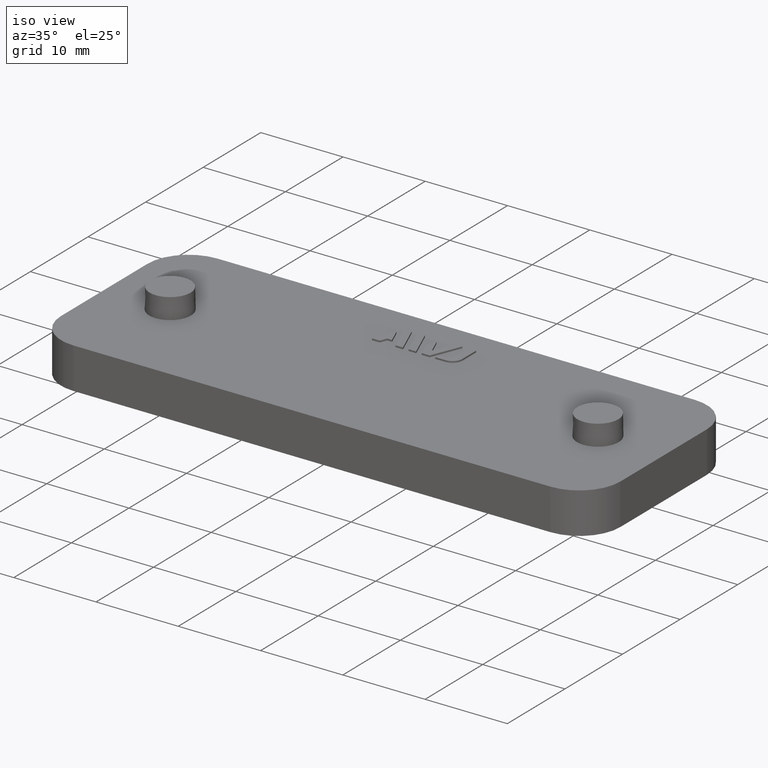
[diagram: clean part render]
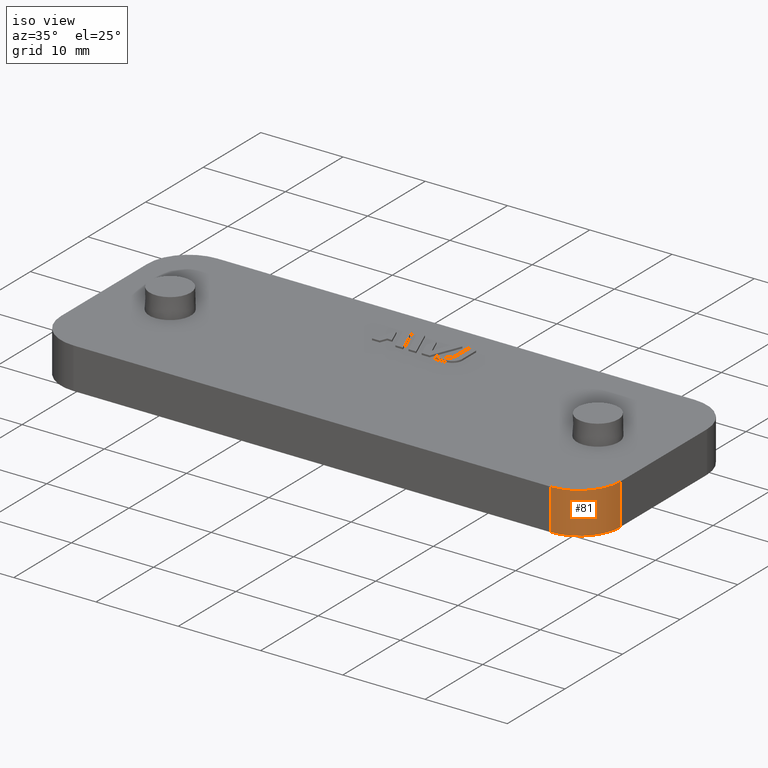
[diagram: same view with one face highlighted and labeled with its STEP entity id]
A machine part, iso view. The second image highlights one B-rep face of the part: STEP entity #81.
In plain terms, the highlighted cylindrical surface (partial cylindrical patch) has radius 5 mm, axis along (-0, -0, -1).
Its self-contained STEP definition (entity closure, byte-faithful):
#81 = ADVANCED_FACE( '', ( #463 ), #464, .T. );
#463 = FACE_OUTER_BOUND( '', #1257, .T. );
#464 = CYLINDRICAL_SURFACE( '', #1258, 5.00000000000000 );
#1257 = EDGE_LOOP( '', ( #2108, #2109, #2110, #2111 ) );
#1258 = AXIS2_PLACEMENT_3D( '', #2112, #2113, #2114 );
#2108 = ORIENTED_EDGE( '', *, *, #5043, .F. );
#2109 = ORIENTED_EDGE( '', *, *, #5042, .T. );
#2110 = ORIENTED_EDGE( '', *, *, #5003, .T. );
#2111 = ORIENTED_EDGE( '', *, *, #5031, .F. );
#2112 = CARTESIAN_POINT( '', ( 29.0000000000000, -7.50000000000001, -71.5474820944098 ) );
#2113 = DIRECTION( '', ( -1.60751816480226E-016, -1.81794180051289E-016, -1.00000000000000 ) );
#2114 = DIRECTION( '', ( 1.00000000000000, 4.62592926927148E-016, -1.60751816480226E-016 ) );
#5003 = EDGE_CURVE( '', #5942, #5943, #5944, .T. );
#5031 = EDGE_CURVE( '', #5996, #5943, #5999, .T. );
#5042 = EDGE_CURVE( '', #6014, #5942, #6016, .T. );
#5043 = EDGE_CURVE( '', #6014, #5996, #6017, .T. );
#5942 = VERTEX_POINT( '', #7501 );
#5943 = VERTEX_POINT( '', #7502 );
#5944 = CIRCLE( '', #7503, 5.00000000000000 );
#5996 = VERTEX_POINT( '', #7574 );
#5999 = LINE( '', #7578, #7579 );
#6014 = VERTEX_POINT( '', #7602 );
#6016 = LINE( '', #7605, #7606 );
#6017 = CIRCLE( '', #7607, 5.00000000000000 );
#7501 = CARTESIAN_POINT( '', ( 34.0000000000000, -7.50000000000000, 4.99999999999999 ) );
#7502 = CARTESIAN_POINT( '', ( 29.0000000000000, -12.5000000000000, 5.00000000000000 ) );
#7503 = AXIS2_PLACEMENT_3D( '', #9939, #9940, #9941 );
#7574 = CARTESIAN_POINT( '', ( 29.0000000000000, -12.5000000000000, 7.65378971138986E-016 ) );
#7578 = CARTESIAN_POINT( '', ( 29.0000000000000, -12.5000000000000, -71.5474820944098 ) );
#7579 = VECTOR( '', #9983, 1000.00000000000 );
#7602 = CARTESIAN_POINT( '', ( 34.0000000000000, -7.50000000000000, 4.59227382683391E-016 ) );
#7605 = CARTESIAN_POINT( '', ( 34.0000000000000, -7.50000000000001, -71.5474820944098 ) );
#7606 = VECTOR( '', #9996, 1000.00000000000 );
#7607 = AXIS2_PLACEMENT_3D( '', #9997, #9998, #9999 );
#9939 = CARTESIAN_POINT( '', ( 29.0000000000000, -7.50000000000000, 4.99999999999999 ) );
#9940 = DIRECTION( '', ( 0.000000000000000, -6.12303176911189E-017, -1.00000000000000 ) );
#9941 = DIRECTION( '', ( 0.000000000000000, 1.00000000000000, -6.12303176911189E-017 ) );
#9983 = DIRECTION( '', ( 1.60751816480226E-016, 1.81794180051289E-016, 1.00000000000000 ) );
#9996 = DIRECTION( '', ( 1.60751816480226E-016, 1.81794180051289E-016, 1.00000000000000 ) );
#9997 = CARTESIAN_POINT( '', ( 29.0000000000000, -7.50000000000000, 4.59227382683391E-016 ) );
#9998 = DIRECTION( '', ( 0.000000000000000, -6.12303176911189E-017, -1.00000000000000 ) );
#9999 = DIRECTION( '', ( 0.000000000000000, 1.00000000000000, -6.12303176911189E-017 ) );